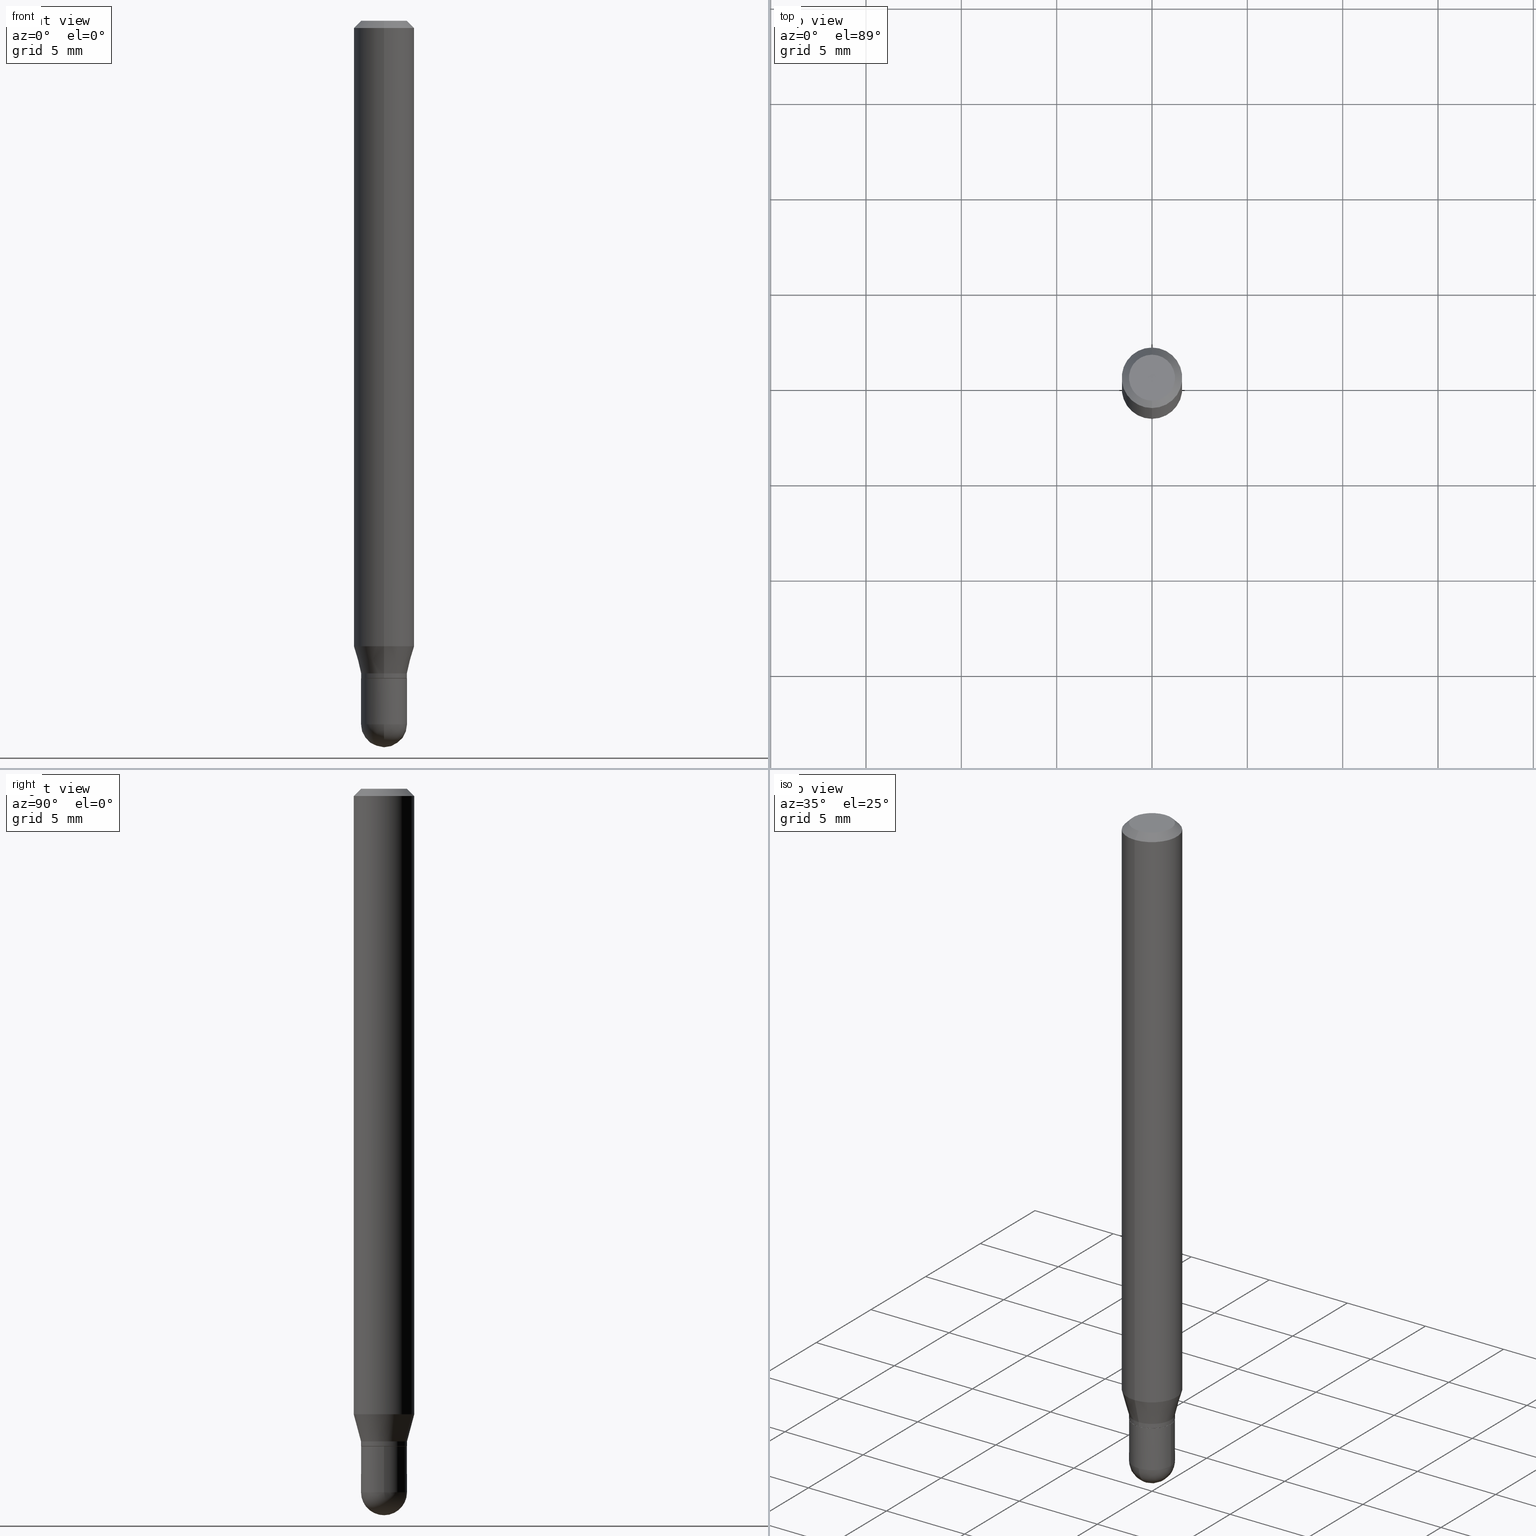
[diagram: canonical four-view strip — front | top / right | iso, engineering-drawing reading convention]
A machine part, canonical four-view strip (front | top / right | iso — engineering-drawing reading convention). The complete STEP part file that produces these views, byte-faithful:
ISO-10303-21;
HEADER;
FILE_DESCRIPTION (( 'STEP AP203' ),
    '1' );
FILE_NAME ('04382.STEP',
    '2024-03-08T19:02:20',
    ( '' ),
    ( '' ),
    'SwSTEP 2.0',
    'SolidWorks 2023',
    '' );
FILE_SCHEMA (( 'CONFIG_CONTROL_DESIGN' ));
ENDSEC;

DATA;
#1 = ORIENTED_EDGE ( 'NONE', *, *, #402, .F. ) ;
#2 = ORIENTED_EDGE ( 'NONE', *, *, #266, .F. ) ;
#3 = DATE_AND_TIME ( #45, #307 ) ;
#4 = CIRCLE ( 'NONE', #240, 0.04699999999999999317 ) ;
#5 = ORIENTED_EDGE ( 'NONE', *, *, #211, .T. ) ;
#6 = ADVANCED_FACE ( 'NONE', ( #250 ), #400, .T. ) ;
#7 = VERTEX_POINT ( 'NONE', #52 ) ;
#8 = COORDINATED_UNIVERSAL_TIME_OFFSET ( 5, 0, .BEHIND. ) ;
#9 = ORIENTED_EDGE ( 'NONE', *, *, #392, .T. ) ;
#10 = ORIENTED_EDGE ( 'NONE', *, *, #211, .F. ) ;
#11 = CARTESIAN_POINT ( 'NONE',  ( 3.318459876313655906E-29, -4.737999311709590366E-15, -1.357000000000000206 ) ) ;
#12 = CARTESIAN_POINT ( 'NONE',  ( 0.04749999999999999362, -5.071376644669668238E-15, -1.357500000000000151 ) ) ;
#13 = APPROVAL_DATE_TIME ( #254, #220 ) ;
#14 = DIRECTION ( 'NONE',  ( -2.445438376060173173E-29, 3.491524916514068512E-15, 1.000000000000000000 ) ) ;
#15 = LOCAL_TIME ( 14, 2, 20.00000000000000000, #401 ) ;
#16 = CONICAL_SURFACE ( 'NONE', #74, 0.06250000000000000000, 0.7853981633974483900 ) ;
#17 = DIRECTION ( 'NONE',  ( -2.445438376060173173E-29, 3.491524916514068118E-15, 1.000000000000000000 ) ) ;
#18 = CARTESIAN_POINT ( 'NONE',  ( 3.662110149467302102E-29, -5.245947616708644728E-15, -1.500000000000000222 ) ) ;
#19 = ADVANCED_FACE ( 'NONE', ( #44 ), #253, .T. ) ;
#20 = CARTESIAN_POINT ( 'NONE',  ( 3.295228211741083750E-29, -4.704829825002706980E-15, -1.347500000000000142 ) ) ;
#21 = EDGE_CURVE ( 'NONE', #471, #207, #196, .T. ) ;
#22 = CARTESIAN_POINT ( 'NONE',  ( 1.601717240834844103E-45, -2.286884719865626789E-31, -6.549816411302738119E-17 ) ) ;
#23 = APPROVAL_PERSON_ORGANIZATION ( #61, #503, #218 ) ;
#24 = AXIS2_PLACEMENT_3D ( 'NONE', #256, #107, #265 ) ;
#25 = DIRECTION ( 'NONE',  ( 5.024295867788190974E-15, 0.7071067811865681119, 0.7071067811865270336 ) ) ;
#26 = DIRECTION ( 'NONE',  ( 1.839019923739606626E-15, 0.2588190451025258465, 0.9659258262890669799 ) ) ;
#27 = FACE_OUTER_BOUND ( 'NONE', #249, .T. ) ;
#28 = CARTESIAN_POINT ( 'NONE',  ( -4.287811248607203282E-16, -0.06250000000000005551, -0.01499999999999984852 ) ) ;
#29 = ORIENTED_EDGE ( 'NONE', *, *, #145, .T. ) ;
#30 = AXIS2_PLACEMENT_3D ( 'NONE', #198, #386, #424 ) ;
#31 = PRODUCT_DEFINITION_SHAPE ( 'NONE', 'NONE',  #275 ) ;
#32 = CC_DESIGN_PERSON_AND_ORGANIZATION_ASSIGNMENT ( #434, #170, ( #222 ) ) ;
#33 = DIRECTION ( 'NONE',  ( -6.982962677686265922E-15, -1.000000000000000000, 4.370956789862821150E-15 ) ) ;
#34 = ADVANCED_FACE ( 'NONE', ( #390 ), #41, .T. ) ;
#35 = ORIENTED_EDGE ( 'NONE', *, *, #191, .T. ) ;
#36 = CIRCLE ( 'NONE', #460, 0.04749999999999999362 ) ;
#37 =( LENGTH_UNIT ( ) NAMED_UNIT ( * ) SI_UNIT ( $, .METRE. ) );
#38 = CC_DESIGN_APPROVAL ( #220, ( #222 ) ) ;
#39 = AXIS2_PLACEMENT_3D ( 'NONE', #134, #251, #99 ) ;
#40 = ORIENTED_EDGE ( 'NONE', *, *, #21, .T. ) ;
#41 = CYLINDRICAL_SURFACE ( 'NONE', #418, 0.04750000000000000749 ) ;
#42 = DIRECTION ( 'NONE',  ( -6.982962677686265922E-15, -1.000000000000000000, 3.491524916514068118E-15 ) ) ;
#43 = ORIENTED_EDGE ( 'NONE', *, *, #362, .F. ) ;
#44 = FACE_OUTER_BOUND ( 'NONE', #319, .T. ) ;
#45 = CALENDAR_DATE ( 2024, 8, 3 ) ;
#46 = ORIENTED_EDGE ( 'NONE', *, *, #489, .F. ) ;
#47 = EDGE_LOOP ( 'NONE', ( #438, #348, #135, #394 ) ) ;
#48 = APPROVAL_ROLE ( '' ) ;
#49 = CONICAL_SURFACE ( 'NONE', #371, 0.04750000000000019484, 0.2617993877991511842 ) ;
#50 = APPROVAL_PERSON_ORGANIZATION ( #357, #327, #48 ) ;
#51 = VERTEX_POINT ( 'NONE', #285 ) ;
#52 = CARTESIAN_POINT ( 'NONE',  ( 3.907985046680881378E-16, 0.04749999999999549027, -1.347500000000000364 ) ) ;
#53 = DIRECTION ( 'NONE',  ( -6.982962677686266711E-15, -1.000000000000000000, 5.812442539711199378E-15 ) ) ;
#54 = ORIENTED_EDGE ( 'NONE', *, *, #421, .F. ) ;
#55 = EDGE_CURVE ( 'NONE', #124, #197, #432, .T. ) ;
#56 = CARTESIAN_POINT ( 'NONE',  ( -3.316907271900650691E-16, -0.04750000000000482309, -1.356999999999999984 ) ) ;
#57 = CARTESIAN_POINT ( 'NONE',  ( 0.000000000000000000, 0.000000000000000000, 0.000000000000000000 ) ) ;
#58 = DIRECTION ( 'NONE',  ( -6.982962677686265922E-15, -1.000000000000000000, 5.751258934030004495E-15 ) ) ;
#59 = EDGE_CURVE ( 'NONE', #272, #197, #494, .T. ) ;
#60 = CARTESIAN_POINT ( 'NONE',  ( -0.04750000000000000749, 3.375077994860476415E-16, -2.336494167871080260E-30 ) ) ;
#61 = PERSON_AND_ORGANIZATION ( #448, #416 ) ;
#62 = DIRECTION ( 'NONE',  ( -6.982962677686265922E-15, -1.000000000000000000, 5.751258934030004495E-15 ) ) ;
#63 = CIRCLE ( 'NONE', #242, 0.04750000000000019484 ) ;
#64 = DIRECTION ( 'NONE',  ( -6.982962677686265922E-15, -1.000000000000000000, 3.491524916514068512E-15 ) ) ;
#65 = CIRCLE ( 'NONE', #221, 0.04750000000000000749 ) ;
#66 = CARTESIAN_POINT ( 'NONE',  ( 4.440892098500943678E-16, 0.06249999999999552441, -1.291519237886468163 ) ) ;
#67 = CYLINDRICAL_SURFACE ( 'NONE', #463, 0.06250000000000000000 ) ;
#68 = EDGE_CURVE ( 'NONE', #356, #169, #389, .T. ) ;
#69 = FACE_OUTER_BOUND ( 'NONE', #509, .T. ) ;
#70 = CYLINDRICAL_SURFACE ( 'NONE', #321, 0.04750000000000000749 ) ;
#71 = CARTESIAN_POINT ( 'NONE',  ( 0.000000000000000000, 0.000000000000000000, 0.000000000000000000 ) ) ;
#72 = LINE ( 'NONE', #379, #493 ) ;
#73 = DIRECTION ( 'NONE',  ( 1.000000000000000000, -6.982962677686265922E-15, 4.883557194083112340E-29 ) ) ;
#74 = AXIS2_PLACEMENT_3D ( 'NONE', #255, #375, #216 ) ;
#75 = CYLINDRICAL_SURFACE ( 'NONE', #415, 0.06250000000000000000 ) ;
#76 = EDGE_CURVE ( 'NONE', #315, #169, #450, .T. ) ;
#77 = DIRECTION ( 'NONE',  ( -6.982962677686265922E-15, -1.000000000000000000, 3.483106191921935554E-15 ) ) ;
#78 = ORIENTED_EDGE ( 'NONE', *, *, #266, .T. ) ;
#79 = FACE_OUTER_BOUND ( 'NONE', #208, .T. ) ;
#80 = CC_DESIGN_APPROVAL ( #503, ( #275 ) ) ;
#81 = CIRCLE ( 'NONE', #259, 0.06250000000000000000 ) ;
#82 = ORIENTED_EDGE ( 'NONE', *, *, #479, .T. ) ;
#83 = ORIENTED_EDGE ( 'NONE', *, *, #204, .F. ) ;
#84 = ADVANCED_FACE ( 'NONE', ( #268 ), #457, .F. ) ;
#85 =( NAMED_UNIT ( * ) SI_UNIT ( $, .STERADIAN. ) SOLID_ANGLE_UNIT ( ) );
#86 = MANIFOLD_SOLID_BREP ( 'Body-Move/Copy2[2]', #163 ) ;
#87 = ORIENTED_EDGE ( 'NONE', *, *, #229, .T. ) ;
#88 = ORIENTED_EDGE ( 'NONE', *, *, #68, .T. ) ;
#89 = PERSON_AND_ORGANIZATION ( #448, #416 ) ;
#90 = EDGE_LOOP ( 'NONE', ( #305, #9, #323, #131 ) ) ;
#91 = ORIENTED_EDGE ( 'NONE', *, *, #160, .F. ) ;
#92 = SHAPE_DEFINITION_REPRESENTATION ( #31, #199 ) ;
#93 = CC_DESIGN_APPROVAL ( #327, ( #500 ) ) ;
#94 = CARTESIAN_POINT ( 'NONE',  ( 3.319682595501686521E-29, -4.739745074167848632E-15, -1.357500000000000373 ) ) ;
#95 = ORIENTED_EDGE ( 'NONE', *, *, #258, .T. ) ;
#96 = CIRCLE ( 'NONE', #24, 0.04749999999999999362 ) ;
#97 = VERTEX_POINT ( 'NONE', #263 ) ;
#98 = PERSON_AND_ORGANIZATION_ROLE ( 'design_owner' ) ;
#99 = DIRECTION ( 'NONE',  ( -1.000000000000000000, 6.982962677686265922E-15, -4.876176775795935793E-29 ) ) ;
#100 = LINE ( 'NONE', #60, #105 ) ;
#101 = APPLICATION_PROTOCOL_DEFINITION ( 'international standard', 'config_control_design', 1994, #202 ) ;
#102 = CARTESIAN_POINT ( 'NONE',  ( 0.04750000000000000749, -3.316907271900977082E-16, 2.316183968503069432E-30 ) ) ;
#103 = DIRECTION ( 'NONE',  ( -6.982962677686265922E-15, -1.000000000000000000, 5.751258934030004495E-15 ) ) ;
#104 = CARTESIAN_POINT ( 'NONE',  ( 3.319682595501686521E-29, -4.739745074167848632E-15, -1.357500000000000373 ) ) ;
#105 = VECTOR ( 'NONE', #366, 39.37007874015748143 ) ;
#106 = DIRECTION ( 'NONE',  ( -2.445468806185136597E-29, 3.491481338843145583E-15, 1.000000000000000000 ) ) ;
#107 = DIRECTION ( 'NONE',  ( -2.445468806185136597E-29, 3.491481338843145583E-15, 1.000000000000000000 ) ) ;
#108 = CARTESIAN_POINT ( 'NONE',  ( 3.375077994860489234E-16, 0.04750000000000019484, -1.658474335344189249E-16 ) ) ;
#109 = DIRECTION ( 'NONE',  ( -2.445438376060173173E-29, 3.491524916514068512E-15, 1.000000000000000000 ) ) ;
#110 = AXIS2_PLACEMENT_3D ( 'NONE', #20, #445, #334 ) ;
#111 = DIRECTION ( 'NONE',  ( -2.445438376060173173E-29, 3.491524916514068118E-15, 1.000000000000000000 ) ) ;
#112 = ORIENTED_EDGE ( 'NONE', *, *, #470, .F. ) ;
#113 = AXIS2_PLACEMENT_3D ( 'NONE', #289, #17, #300 ) ;
#114 = ADVANCED_FACE ( 'NONE', ( #337 ), #70, .T. ) ;
#115 = CARTESIAN_POINT ( 'NONE',  ( 3.158330707747556707E-29, -4.509371599237863193E-15, -1.291519237886467941 ) ) ;
#116 = SPHERICAL_SURFACE ( 'NONE', #508, 0.04749999999999998668 ) ;
#117 = EDGE_CURVE ( 'NONE', #124, #130, #119, .T. ) ;
#118 = CC_DESIGN_PERSON_AND_ORGANIZATION_ASSIGNMENT ( #404, #98, ( #439 ) ) ;
#119 = CIRCLE ( 'NONE', #261, 0.04749999999999999362 ) ;
#120 = CARTESIAN_POINT ( 'NONE',  ( 0.000000000000000000, 0.000000000000000000, 0.000000000000000000 ) ) ;
#121 = ORIENTED_EDGE ( 'NONE', *, *, #117, .F. ) ;
#122 = ORIENTED_EDGE ( 'NONE', *, *, #458, .F. ) ;
#123 = CARTESIAN_POINT ( 'NONE',  ( 3.295228211741083750E-29, -4.704829825002706980E-15, -1.347500000000000142 ) ) ;
#124 = VERTEX_POINT ( 'NONE', #225 ) ;
#125 = DIRECTION ( 'NONE',  ( 1.000000000000000000, -6.982962677686266711E-15, 4.876176775795934672E-29 ) ) ;
#126 = AXIS2_PLACEMENT_3D ( 'NONE', #190, #464, #161 ) ;
#127 = CALENDAR_DATE ( 2024, 8, 3 ) ;
#128 = CIRCLE ( 'NONE', #461, 0.06250000000000000000 ) ;
#129 = VERTEX_POINT ( 'NONE', #56 ) ;
#130 = VERTEX_POINT ( 'NONE', #187 ) ;
#131 = ORIENTED_EDGE ( 'NONE', *, *, #349, .F. ) ;
#132 = EDGE_LOOP ( 'NONE', ( #480, #361 ) ) ;
#133 = SECURITY_CLASSIFICATION_LEVEL ( 'unclassified' ) ;
#134 = CARTESIAN_POINT ( 'NONE',  ( 3.316907271901307910E-16, 0.04749999999999526129, -1.357500000000000373 ) ) ;
#135 = ORIENTED_EDGE ( 'NONE', *, *, #296, .T. ) ;
#136 = ORIENTED_EDGE ( 'NONE', *, *, #355, .F. ) ;
#137 = ADVANCED_FACE ( 'NONE', ( #446 ), #67, .T. ) ;
#138 = CALENDAR_DATE ( 2024, 8, 3 ) ;
#139 = ORIENTED_EDGE ( 'NONE', *, *, #365, .T. ) ;
#140 = PLANE ( 'NONE',  #39 ) ;
#141 = CARTESIAN_POINT ( 'NONE',  ( 3.668157564090276033E-31, -5.237287374771125695E-17, -0.01500000000000006710 ) ) ;
#142 = DIRECTION ( 'NONE',  ( 0.000000000000000000, 0.000000000000000000, 1.000000000000000000 ) ) ;
#143 = DIRECTION ( 'NONE',  ( -6.982962677686265922E-15, -1.000000000000000000, 3.483106191921935554E-15 ) ) ;
#144 = FACE_OUTER_BOUND ( 'NONE', #280, .T. ) ;
#145 = EDGE_CURVE ( 'NONE', #471, #356, #100, .T. ) ;
#146 = CARTESIAN_POINT ( 'NONE',  ( 3.319723904396323737E-29, -4.739685917479570727E-15, -1.357500000000000151 ) ) ;
#147 = APPLICATION_CONTEXT ( 'configuration controlled 3d designs of mechanical parts and assemblies' ) ;
#148 = CARTESIAN_POINT ( 'NONE',  ( 0.04750000000000000749, -5.237222008264718177E-15, -1.452500000000000346 ) ) ;
#149 =( GEOMETRIC_REPRESENTATION_CONTEXT ( 3 ) GLOBAL_UNCERTAINTY_ASSIGNED_CONTEXT ( ( #205 ) ) GLOBAL_UNIT_ASSIGNED_CONTEXT ( ( #326, #214, #85 ) ) REPRESENTATION_CONTEXT ( 'NONE', 'WORKASPACE' ) );
#150 = CARTESIAN_POINT ( 'NONE',  ( 3.295228211741083750E-29, -4.704829825002706980E-15, -1.347500000000000142 ) ) ;
#151 = DIRECTION ( 'NONE',  ( -6.982962677686266711E-15, -1.000000000000000000, 5.812442539711199378E-15 ) ) ;
#152 = DIRECTION ( 'NONE',  ( -1.807323732225336450E-15, -0.2588190451025190741, 0.9659258262890687563 ) ) ;
#153 = DIRECTION ( 'NONE',  ( -6.982962677686265922E-15, -1.000000000000000000, 3.491524916514067723E-15 ) ) ;
#154 = CIRCLE ( 'NONE', #126, 0.04750000000000000749 ) ;
#155 = ORIENTED_EDGE ( 'NONE', *, *, #175, .F. ) ;
#156 = CC_DESIGN_SECURITY_CLASSIFICATION ( #500, ( #222 ) ) ;
#157 = VECTOR ( 'NONE', #217, 39.37007874015748143 ) ;
#158 = CONICAL_SURFACE ( 'NONE', #502, 0.06250000000000000000, 0.7853981633974483900 ) ;
#159 = CARTESIAN_POINT ( 'NONE',  ( 4.440892098500943678E-16, 0.06249999999999995837, -0.01500000000000028394 ) ) ;
#160 = EDGE_CURVE ( 'NONE', #169, #356, #96, .T. ) ;
#161 = DIRECTION ( 'NONE',  ( 1.000000000000000000, -6.982962677686260400E-15, 0.000000000000000000 ) ) ;
#162 = DIRECTION ( 'NONE',  ( -2.445438376060173173E-29, 3.491524916514068118E-15, 1.000000000000000000 ) ) ;
#163 = CLOSED_SHELL ( 'NONE', ( #382, #248, #238, #466, #168, #236, #137, #336, #414, #84, #417, #6 ) ) ;
#164 = DIRECTION ( 'NONE',  ( -4.937700262164674260E-15, -0.7071067811865632269, 0.7071067811865319186 ) ) ;
#165 = VERTEX_POINT ( 'NONE', #372 ) ;
#166 = DIRECTION ( 'NONE',  ( -2.445468806185136597E-29, 3.491481338843145583E-15, 1.000000000000000000 ) ) ;
#167 = MECHANICAL_CONTEXT ( 'NONE', #147, 'mechanical' ) ;
#168 = ADVANCED_FACE ( 'NONE', ( #492 ), #384, .T. ) ;
#169 = VERTEX_POINT ( 'NONE', #12 ) ;
#170 = PERSON_AND_ORGANIZATION_ROLE ( 'creator' ) ;
#171 = AXIS2_PLACEMENT_3D ( 'NONE', #150, #301, #341 ) ;
#172 = ORIENTED_EDGE ( 'NONE', *, *, #489, .T. ) ;
#173 = ORIENTED_EDGE ( 'NONE', *, *, #496, .T. ) ;
#174 = DATE_AND_TIME ( #127, #399 ) ;
#175 = EDGE_CURVE ( 'NONE', #130, #272, #504, .T. ) ;
#176 = CARTESIAN_POINT ( 'NONE',  ( 3.547981401110308940E-29, -5.077193716965619798E-15, -1.452500000000000124 ) ) ;
#177 = APPROVAL_STATUS ( 'not_yet_approved' ) ;
#178 = CARTESIAN_POINT ( 'NONE',  ( 3.318459876313655906E-29, -4.737999311709590366E-15, -1.357000000000000206 ) ) ;
#179 = DATE_AND_TIME ( #360, #430 ) ;
#180 = VECTOR ( 'NONE', #109, 39.37007874015748143 ) ;
#181 = AXIS2_PLACEMENT_3D ( 'NONE', #104, #406, #64 ) ;
#182 = FACE_OUTER_BOUND ( 'NONE', #396, .T. ) ;
#183 = ADVANCED_FACE ( 'NONE', ( #194 ), #116, .T. ) ;
#184 = FACE_OUTER_BOUND ( 'NONE', #90, .T. ) ;
#185 = DIRECTION ( 'NONE',  ( -6.982962677686265922E-15, -1.000000000000000000, 3.491524916514067723E-15 ) ) ;
#186 = CARTESIAN_POINT ( 'NONE',  ( -4.364351673553916201E-16, -0.06250000000000000000, 2.182203072821292327E-16 ) ) ;
#187 = CARTESIAN_POINT ( 'NONE',  ( -3.773273898774340269E-16, -0.04749999999999999362, 1.003492694213908288E-16 ) ) ;
#188 = PRODUCT_RELATED_PRODUCT_CATEGORY ( 'detail', '', ( #439 ) ) ;
#189 = CARTESIAN_POINT ( 'NONE',  ( -4.364351673553598192E-16, -0.06250000000000446865, -1.291519237886467719 ) ) ;
#190 = CARTESIAN_POINT ( 'NONE',  ( 3.552043440983912297E-29, -5.071376644669670605E-15, -1.452500000000000346 ) ) ;
#191 = EDGE_CURVE ( 'NONE', #165, #471, #154, .T. ) ;
#192 = FACE_OUTER_BOUND ( 'NONE', #505, .T. ) ;
#193 = CIRCLE ( 'NONE', #30, 0.04749999999999998668 ) ;
#194 = FACE_OUTER_BOUND ( 'NONE', #440, .T. ) ;
#195 = ORIENTED_EDGE ( 'NONE', *, *, #59, .F. ) ;
#196 = CIRCLE ( 'NONE', #234, 0.04750000000000000749 ) ;
#197 = VERTEX_POINT ( 'NONE', #159 ) ;
#198 = CARTESIAN_POINT ( 'NONE',  ( 3.547981401110308940E-29, -5.077193716965619798E-15, -1.452500000000000124 ) ) ;
#199 = ADVANCED_BREP_SHAPE_REPRESENTATION ( '04382', ( #425, #86, #376 ), #149 ) ;
#200 = ORIENTED_EDGE ( 'NONE', *, *, #145, .F. ) ;
#201 = CARTESIAN_POINT ( 'NONE',  ( -0.04749999999999999362, -4.568023481588573961E-15, -1.357500000000000151 ) ) ;
#202 = APPLICATION_CONTEXT ( 'configuration controlled 3d designs of mechanical parts and assemblies' ) ;
#203 = ORIENTED_EDGE ( 'NONE', *, *, #175, .T. ) ;
#204 = EDGE_CURVE ( 'NONE', #7, #292, #72, .T. ) ;
#205 = UNCERTAINTY_MEASURE_WITH_UNIT (LENGTH_MEASURE( 1.000000000000000082E-05 ), #326, 'distance_accuracy_value', 'NONE');
#206 = PLANE ( 'NONE',  #345 ) ;
#207 = VERTEX_POINT ( 'NONE', #310 ) ;
#208 = EDGE_LOOP ( 'NONE', ( #431, #173 ) ) ;
#209 = ORIENTED_EDGE ( 'NONE', *, *, #191, .F. ) ;
#210 = CALENDAR_DATE ( 2024, 8, 3 ) ;
#211 = EDGE_CURVE ( 'NONE', #388, #292, #224, .T. ) ;
#212 = ORIENTED_EDGE ( 'NONE', *, *, #470, .T. ) ;
#213 = EDGE_CURVE ( 'NONE', #97, #247, #429, .T. ) ;
#214 =( NAMED_UNIT ( * ) PLANE_ANGLE_UNIT ( ) SI_UNIT ( $, .RADIAN. ) );
#215 = ORIENTED_EDGE ( 'NONE', *, *, #55, .F. ) ;
#216 = DIRECTION ( 'NONE',  ( 6.982962677686265922E-15, 1.000000000000000000, -3.483106191921935554E-15 ) ) ;
#217 = DIRECTION ( 'NONE',  ( -2.445468806185136877E-29, 3.491481338843145188E-15, 1.000000000000000000 ) ) ;
#218 = APPROVAL_ROLE ( '' ) ;
#219 = LINE ( 'NONE', #368, #329 ) ;
#220 = APPROVAL ( #177, 'UNSPECIFIED' ) ;
#221 = AXIS2_PLACEMENT_3D ( 'NONE', #335, #106, #257 ) ;
#222 = PRODUCT_DEFINITION_FORMATION_WITH_SPECIFIED_SOURCE ( 'ANY', '', #439, .NOT_KNOWN. ) ;
#223 = DIRECTION ( 'NONE',  ( 2.445438376060173173E-29, -3.491524916514068118E-15, -1.000000000000000000 ) ) ;
#224 = CIRCLE ( 'NONE', #332, 0.06250000000000000000 ) ;
#225 = CARTESIAN_POINT ( 'NONE',  ( 3.840629472727447874E-16, 0.04749999999999999362, -2.313455976474456035E-16 ) ) ;
#226 = EDGE_LOOP ( 'NONE', ( #78, #239, #10, #290 ) ) ;
#227 = CARTESIAN_POINT ( 'NONE',  ( 3.319682595501686521E-29, -4.739745074167848632E-15, -1.357500000000000373 ) ) ;
#228 = CARTESIAN_POINT ( 'NONE',  ( 0.000000000000000000, 0.000000000000000000, 0.000000000000000000 ) ) ;
#229 = EDGE_CURVE ( 'NONE', #129, #353, #273, .T. ) ;
#230 = DIRECTION ( 'NONE',  ( -2.445438376060173173E-29, 3.491524916514068512E-15, 1.000000000000000000 ) ) ;
#231 = ORIENTED_EDGE ( 'NONE', *, *, #392, .F. ) ;
#232 = VECTOR ( 'NONE', #25, 39.37007874015748143 ) ;
#233 = DIRECTION ( 'NONE',  ( -6.982962677686265922E-15, -1.000000000000000000, 5.751258934030028949E-15 ) ) ;
#234 = AXIS2_PLACEMENT_3D ( 'NONE', #281, #166, #354 ) ;
#235 = CARTESIAN_POINT ( 'NONE',  ( 3.547981401110308940E-29, -5.077193716965619798E-15, -1.452500000000000124 ) ) ;
#236 = ADVANCED_FACE ( 'NONE', ( #340 ), #49, .T. ) ;
#237 = DIRECTION ( 'NONE',  ( -6.982962677686266711E-15, -1.000000000000000000, 3.491524916514068118E-15 ) ) ;
#238 = ADVANCED_FACE ( 'NONE', ( #144 ), #158, .T. ) ;
#239 = ORIENTED_EDGE ( 'NONE', *, *, #204, .T. ) ;
#240 = AXIS2_PLACEMENT_3D ( 'NONE', #227, #264, #373 ) ;
#241 = ORIENTED_EDGE ( 'NONE', *, *, #296, .F. ) ;
#242 = AXIS2_PLACEMENT_3D ( 'NONE', #178, #294, #58 ) ;
#243 = ORIENTED_EDGE ( 'NONE', *, *, #21, .F. ) ;
#244 = CARTESIAN_POINT ( 'NONE',  ( 4.364351673553919652E-16, 0.06249999999999995143, -0.01500000000000028394 ) ) ;
#245 = PERSON_AND_ORGANIZATION_ROLE ( 'classification_officer' ) ;
#246 = ORIENTED_EDGE ( 'NONE', *, *, #59, .T. ) ;
#247 = VERTEX_POINT ( 'NONE', #490 ) ;
#248 = ADVANCED_FACE ( 'NONE', ( #184 ), #277, .T. ) ;
#249 = EDGE_LOOP ( 'NONE', ( #5, #476, #195, #241 ) ) ;
#250 = FACE_OUTER_BOUND ( 'NONE', #426, .T. ) ;
#251 = DIRECTION ( 'NONE',  ( 2.438088387897960049E-29, -3.491481338843145188E-15, -1.000000000000000000 ) ) ;
#252 = EDGE_LOOP ( 'NONE', ( #83, #474, #82, #122 ) ) ;
#253 = SPHERICAL_SURFACE ( 'NONE', #409, 0.04749999999999998668 ) ;
#254 = DATE_AND_TIME ( #138, #15 ) ;
#255 = CARTESIAN_POINT ( 'NONE',  ( 3.668157564090276033E-31, -5.237287374771125695E-17, -0.01500000000000006710 ) ) ;
#256 = CARTESIAN_POINT ( 'NONE',  ( 3.319723904396323737E-29, -4.739685917479570727E-15, -1.357500000000000151 ) ) ;
#257 = DIRECTION ( 'NONE',  ( 1.000000000000000000, -6.982962677686260400E-15, 0.000000000000000000 ) ) ;
#258 = EDGE_CURVE ( 'NONE', #315, #165, #65, .T. ) ;
#259 = AXIS2_PLACEMENT_3D ( 'NONE', #115, #274, #33 ) ;
#260 = ORIENTED_EDGE ( 'NONE', *, *, #302, .T. ) ;
#261 = AXIS2_PLACEMENT_3D ( 'NONE', #22, #488, #455 ) ;
#262 = CARTESIAN_POINT ( 'NONE',  ( 3.668157564090276033E-31, -5.237287374771125695E-17, -0.01500000000000006710 ) ) ;
#263 = CARTESIAN_POINT ( 'NONE',  ( -3.281992458512213224E-16, -0.04700000000000473244, -1.357500000000000151 ) ) ;
#264 = DIRECTION ( 'NONE',  ( -2.445438376060173173E-29, 3.491524916514068118E-15, 1.000000000000000000 ) ) ;
#265 = DIRECTION ( 'NONE',  ( 1.000000000000000000, -6.982962677686261977E-15, 0.000000000000000000 ) ) ;
#266 = EDGE_CURVE ( 'NONE', #51, #7, #284, .T. ) ;
#267 = CARTESIAN_POINT ( 'NONE',  ( -0.04750000000000000749, -4.568023481588573961E-15, -1.452500000000000346 ) ) ;
#268 = FACE_OUTER_BOUND ( 'NONE', #132, .T. ) ;
#269 = CIRCLE ( 'NONE', #299, 0.04750000000000000749 ) ;
#270 = DIRECTION ( 'NONE',  ( -2.445468806185136597E-29, 3.491481338843145583E-15, 1.000000000000000000 ) ) ;
#271 = DIRECTION ( 'NONE',  ( -6.982962677686265922E-15, -1.000000000000000000, 4.370956789862821150E-15 ) ) ;
#272 = VERTEX_POINT ( 'NONE', #451 ) ;
#273 = CIRCLE ( 'NONE', #369, 0.04750000000000019484 ) ;
#274 = DIRECTION ( 'NONE',  ( -2.445438376060173173E-29, 3.491524916514068118E-15, 1.000000000000000000 ) ) ;
#275 = PRODUCT_DEFINITION ( 'UNKNOWN', '', #222, #317 ) ;
#276 = ORIENTED_EDGE ( 'NONE', *, *, #76, .F. ) ;
#277 = CONICAL_SURFACE ( 'NONE', #286, 0.04699999999999999317, 0.7853981633974739252 ) ;
#278 = DIRECTION ( 'NONE',  ( -2.445438376060173173E-29, 3.491524916514068118E-15, 1.000000000000000000 ) ) ;
#279 = ADVANCED_FACE ( 'NONE', ( #182 ), #140, .F. ) ;
#280 = EDGE_LOOP ( 'NONE', ( #478, #203, #246, #215 ) ) ;
#281 = CARTESIAN_POINT ( 'NONE',  ( 3.552043440983912297E-29, -5.071376644669670605E-15, -1.452500000000000346 ) ) ;
#282 = CYLINDRICAL_SURFACE ( 'NONE', #407, 0.04750000000000019484 ) ;
#283 = ORIENTED_EDGE ( 'NONE', *, *, #68, .F. ) ;
#284 = CIRCLE ( 'NONE', #110, 0.04750000000000019484 ) ;
#285 = CARTESIAN_POINT ( 'NONE',  ( -3.316907271900660552E-16, -0.04750000000000489941, -1.347499999999999698 ) ) ;
#286 = AXIS2_PLACEMENT_3D ( 'NONE', #94, #410, #53 ) ;
#287 = VERTEX_POINT ( 'NONE', #18 ) ;
#288 = COORDINATED_UNIVERSAL_TIME_OFFSET ( 5, 0, .BEHIND. ) ;
#289 = CARTESIAN_POINT ( 'NONE',  ( 3.319682595501686521E-29, -4.739745074167848632E-15, -1.357500000000000373 ) ) ;
#290 = ORIENTED_EDGE ( 'NONE', *, *, #479, .F. ) ;
#291 = PERSON_AND_ORGANIZATION ( #448, #416 ) ;
#292 = VERTEX_POINT ( 'NONE', #66 ) ;
#293 = LENGTH_MEASURE_WITH_UNIT ( LENGTH_MEASURE( 0.02539999999999999897 ), #37 );
#294 = DIRECTION ( 'NONE',  ( -2.445438376060173173E-29, 3.491524916514068118E-15, 1.000000000000000000 ) ) ;
#295 = DIRECTION ( 'NONE',  ( 1.000000000000000000, -6.982962677686266711E-15, 4.876176775795934672E-29 ) ) ;
#296 = EDGE_CURVE ( 'NONE', #388, #272, #297, .T. ) ;
#297 = LINE ( 'NONE', #186, #391 ) ;
#298 = DIRECTION ( 'NONE',  ( -2.445468806185136597E-29, 3.491481338843145583E-15, 1.000000000000000000 ) ) ;
#299 = AXIS2_PLACEMENT_3D ( 'NONE', #459, #270, #419 ) ;
#300 = DIRECTION ( 'NONE',  ( -6.982962677686266711E-15, -1.000000000000000000, 5.812442539711199378E-15 ) ) ;
#301 = DIRECTION ( 'NONE',  ( -2.445438376060173173E-29, 3.491524916514068118E-15, 1.000000000000000000 ) ) ;
#302 = EDGE_CURVE ( 'NONE', #247, #97, #4, .T. ) ;
#303 = CARTESIAN_POINT ( 'NONE',  ( 3.316907271900976096E-16, 0.04749999999999999362, -1.985965155909319314E-16 ) ) ;
#304 = CARTESIAN_POINT ( 'NONE',  ( -3.316907271900989901E-16, -0.04750000000000019484, 1.658474335344189249E-16 ) ) ;
#305 = ORIENTED_EDGE ( 'NONE', *, *, #213, .T. ) ;
#306 = LINE ( 'NONE', #312, #232 ) ;
#307 = LOCAL_TIME ( 14, 2, 20.00000000000000000, #318 ) ;
#308 = ORIENTED_EDGE ( 'NONE', *, *, #421, .T. ) ;
#309 = CIRCLE ( 'NONE', #320, 0.04750000000000019484 ) ;
#310 = CARTESIAN_POINT ( 'NONE',  ( -3.316907271900621108E-16, -0.04750000000000507983, -1.452500000000000124 ) ) ;
#311 = EDGE_CURVE ( 'NONE', #292, #197, #403, .T. ) ;
#312 = CARTESIAN_POINT ( 'NONE',  ( 3.339550858072801710E-16, 0.04699999999999526085, -1.357500000000000817 ) ) ;
#313 = DIRECTION ( 'NONE',  ( 1.000000000000000000, -6.982962677686265922E-15, 4.883557194083112340E-29 ) ) ;
#314 = CARTESIAN_POINT ( 'NONE',  ( 3.375077994860828938E-16, 0.04749999999999556660, -1.357000000000000650 ) ) ;
#315 = VERTEX_POINT ( 'NONE', #148 ) ;
#316 = DIRECTION ( 'NONE',  ( -2.445468806185136597E-29, 3.491481338843145583E-15, 1.000000000000000000 ) ) ;
#317 = DESIGN_CONTEXT ( 'detailed design', #202, 'design' ) ;
#318 = COORDINATED_UNIVERSAL_TIME_OFFSET ( 5, 0, .BEHIND. ) ;
#319 = EDGE_LOOP ( 'NONE', ( #43, #435, #243, #209 ) ) ;
#320 = AXIS2_PLACEMENT_3D ( 'NONE', #123, #428, #378 ) ;
#321 = AXIS2_PLACEMENT_3D ( 'NONE', #328, #411, #295 ) ;
#322 = APPROVAL_STATUS ( 'not_yet_approved' ) ;
#323 = ORIENTED_EDGE ( 'NONE', *, *, #229, .F. ) ;
#324 = APPROVAL_DATE_TIME ( #174, #327 ) ;
#325 = DIRECTION ( 'NONE',  ( -6.982962677686265922E-15, -1.000000000000000000, 3.491524916514068118E-15 ) ) ;
#326 =( CONVERSION_BASED_UNIT ( 'INCH', #293 ) LENGTH_UNIT ( ) NAMED_UNIT ( #501 ) );
#327 = APPROVAL ( #322, 'UNSPECIFIED' ) ;
#328 = CARTESIAN_POINT ( 'NONE',  ( 0.000000000000000000, 0.000000000000000000, 0.000000000000000000 ) ) ;
#329 = VECTOR ( 'NONE', #164, 39.37007874015748143 ) ;
#330 = DATE_TIME_ROLE ( 'classification_date' ) ;
#331 = AXIS2_PLACEMENT_3D ( 'NONE', #141, #412, #143 ) ;
#332 = AXIS2_PLACEMENT_3D ( 'NONE', #462, #111, #271 ) ;
#333 = ORIENTED_EDGE ( 'NONE', *, *, #349, .T. ) ;
#334 = DIRECTION ( 'NONE',  ( -6.982962677686265922E-15, -1.000000000000000000, 5.751258934030004495E-15 ) ) ;
#335 = CARTESIAN_POINT ( 'NONE',  ( 3.552043440983912297E-29, -5.071376644669670605E-15, -1.452500000000000346 ) ) ;
#336 = ADVANCED_FACE ( 'NONE', ( #69 ), #16, .T. ) ;
#337 = FACE_OUTER_BOUND ( 'NONE', #363, .T. ) ;
#338 = LOCAL_TIME ( 14, 2, 20.00000000000000000, #367 ) ;
#339 = AXIS2_PLACEMENT_3D ( 'NONE', #146, #298, #452 ) ;
#340 = FACE_OUTER_BOUND ( 'NONE', #252, .T. ) ;
#341 = DIRECTION ( 'NONE',  ( -6.982962677686265922E-15, -1.000000000000000000, 5.751258934030004495E-15 ) ) ;
#342 = LINE ( 'NONE', #497, #487 ) ;
#343 = CARTESIAN_POINT ( 'NONE',  ( 1.601717240834844103E-45, -2.286884719865626789E-31, -6.549816411302738119E-17 ) ) ;
#344 = CIRCLE ( 'NONE', #422, 0.04749999999999998668 ) ;
#345 = AXIS2_PLACEMENT_3D ( 'NONE', #303, #465, #413 ) ;
#346 = EDGE_CURVE ( 'NONE', #353, #129, #63, .T. ) ;
#347 = CARTESIAN_POINT ( 'NONE',  ( 3.547981401110308940E-29, -5.077193716965619798E-15, -1.452500000000000124 ) ) ;
#348 = ORIENTED_EDGE ( 'NONE', *, *, #458, .T. ) ;
#349 = EDGE_CURVE ( 'NONE', #97, #129, #219, .T. ) ;
#350 = LINE ( 'NONE', #108, #180 ) ;
#351 = CARTESIAN_POINT ( 'NONE',  ( 0.000000000000000000, 0.000000000000000000, 0.000000000000000000 ) ) ;
#352 = CARTESIAN_POINT ( 'NONE',  ( 3.319682595501686521E-29, -4.739745074167848632E-15, -1.357500000000000373 ) ) ;
#353 = VERTEX_POINT ( 'NONE', #314 ) ;
#354 = DIRECTION ( 'NONE',  ( 1.000000000000000000, -6.982962677686260400E-15, 0.000000000000000000 ) ) ;
#355 = EDGE_CURVE ( 'NONE', #287, #207, #344, .T. ) ;
#356 = VERTEX_POINT ( 'NONE', #201 ) ;
#357 = PERSON_AND_ORGANIZATION ( #448, #416 ) ;
#358 = ORIENTED_EDGE ( 'NONE', *, *, #160, .T. ) ;
#359 = AXIS2_PLACEMENT_3D ( 'NONE', #351, #510, #325 ) ;
#360 = CALENDAR_DATE ( 2024, 8, 3 ) ;
#361 = ORIENTED_EDGE ( 'NONE', *, *, #302, .F. ) ;
#362 = EDGE_CURVE ( 'NONE', #287, #165, #193, .T. ) ;
#363 = EDGE_LOOP ( 'NONE', ( #200, #40, #172, #484, #283 ) ) ;
#364 = PERSON_AND_ORGANIZATION_ROLE ( 'creator' ) ;
#365 = EDGE_CURVE ( 'NONE', #197, #272, #128, .T. ) ;
#366 = DIRECTION ( 'NONE',  ( -2.445468806185136877E-29, 3.491481338843145188E-15, 1.000000000000000000 ) ) ;
#367 = COORDINATED_UNIVERSAL_TIME_OFFSET ( 5, 0, .BEHIND. ) ;
#368 = CARTESIAN_POINT ( 'NONE',  ( -3.281992458512213224E-16, -0.04700000000000473244, -1.357500000000000151 ) ) ;
#369 = AXIS2_PLACEMENT_3D ( 'NONE', #11, #449, #103 ) ;
#370 = APPROVAL_PERSON_ORGANIZATION ( #512, #220, #437 ) ;
#371 = AXIS2_PLACEMENT_3D ( 'NONE', #405, #442, #62 ) ;
#372 = CARTESIAN_POINT ( 'NONE',  ( 3.375077994860830417E-16, 0.04749999999999491435, -1.452500000000000790 ) ) ;
#373 = DIRECTION ( 'NONE',  ( -6.982962677686266711E-15, -1.000000000000000000, 5.812442539711199378E-15 ) ) ;
#374 = DIRECTION ( 'NONE',  ( -2.445438376060173173E-29, 3.491524916514068118E-15, 1.000000000000000000 ) ) ;
#375 = DIRECTION ( 'NONE',  ( 2.445438376060173173E-29, -3.491524916514068118E-15, -1.000000000000000000 ) ) ;
#376 = AXIS2_PLACEMENT_3D ( 'NONE', #57, #142, #441 ) ;
#377 = VECTOR ( 'NONE', #385, 39.37007874015748143 ) ;
#378 = DIRECTION ( 'NONE',  ( -6.982962677686265922E-15, -1.000000000000000000, 5.751258934030004495E-15 ) ) ;
#379 = CARTESIAN_POINT ( 'NONE',  ( 3.375077994860818584E-16, 0.04749999999999549027, -1.347500000000000364 ) ) ;
#380 = CC_DESIGN_DATE_AND_TIME_ASSIGNMENT ( #477, #444, ( #275 ) ) ;
#381 = DIRECTION ( 'NONE',  ( -2.445438376060173173E-29, 3.491524916514068118E-15, 1.000000000000000000 ) ) ;
#382 = ADVANCED_FACE ( 'NONE', ( #192 ), #282, .T. ) ;
#383 = CONICAL_SURFACE ( 'NONE', #473, 0.04699999999999999317, 0.7853981633974739252 ) ;
#384 = CONICAL_SURFACE ( 'NONE', #171, 0.04750000000000019484, 0.2617993877991511842 ) ;
#385 = DIRECTION ( 'NONE',  ( -4.851104656540964275E-15, -0.7071067811865500152, -0.7071067811865450192 ) ) ;
#386 = DIRECTION ( 'NONE',  ( 1.000000000000000000, -7.105427357601001070E-15, 4.926315508542082329E-29 ) ) ;
#387 = CARTESIAN_POINT ( 'NONE',  ( 3.668157564090276033E-31, -5.237287374771125695E-17, -0.01500000000000006710 ) ) ;
#388 = VERTEX_POINT ( 'NONE', #189 ) ;
#389 = CIRCLE ( 'NONE', #339, 0.04749999999999999362 ) ;
#390 = FACE_OUTER_BOUND ( 'NONE', #436, .T. ) ;
#391 = VECTOR ( 'NONE', #14, 39.37007874015748143 ) ;
#392 = EDGE_CURVE ( 'NONE', #247, #353, #306, .T. ) ;
#393 = DIRECTION ( 'NONE',  ( -6.982962677686265133E-15, -1.000000000000000000, 0.000000000000000000 ) ) ;
#394 = ORIENTED_EDGE ( 'NONE', *, *, #365, .F. ) ;
#395 = DIRECTION ( 'NONE',  ( 4.937700262164548042E-15, 0.7071067811865451302, -0.7071067811865499042 ) ) ;
#396 = EDGE_LOOP ( 'NONE', ( #358, #88 ) ) ;
#397 = APPROVAL_STATUS ( 'not_yet_approved' ) ;
#398 = ORIENTED_EDGE ( 'NONE', *, *, #346, .T. ) ;
#399 = LOCAL_TIME ( 14, 2, 20.00000000000000000, #8 ) ;
#400 = CYLINDRICAL_SURFACE ( 'NONE', #359, 0.04750000000000019484 ) ;
#401 = COORDINATED_UNIVERSAL_TIME_OFFSET ( 5, 0, .BEHIND. ) ;
#402 = EDGE_CURVE ( 'NONE', #7, #51, #309, .T. ) ;
#403 = LINE ( 'NONE', #491, #433 ) ;
#404 = PERSON_AND_ORGANIZATION ( #448, #416 ) ;
#405 = CARTESIAN_POINT ( 'NONE',  ( 3.295228211741083750E-29, -4.704829825002706980E-15, -1.347500000000000142 ) ) ;
#406 = DIRECTION ( 'NONE',  ( -2.445438376060172613E-29, 3.491524916514068512E-15, 1.000000000000000000 ) ) ;
#407 = AXIS2_PLACEMENT_3D ( 'NONE', #71, #381, #42 ) ;
#408 = CC_DESIGN_PERSON_AND_ORGANIZATION_ASSIGNMENT ( #291, #245, ( #500 ) ) ;
#409 = AXIS2_PLACEMENT_3D ( 'NONE', #176, #313, #468 ) ;
#410 = DIRECTION ( 'NONE',  ( -2.445438376060173173E-29, 3.491524916514068118E-15, 1.000000000000000000 ) ) ;
#411 = DIRECTION ( 'NONE',  ( -2.445468806185136597E-29, 3.491481338843145583E-15, 1.000000000000000000 ) ) ;
#412 = DIRECTION ( 'NONE',  ( -2.445438376060173173E-29, 3.491524916514068118E-15, 1.000000000000000000 ) ) ;
#413 = DIRECTION ( 'NONE',  ( 6.982962677686265922E-15, 1.000000000000000000, -3.491524916514068512E-15 ) ) ;
#414 = ADVANCED_FACE ( 'NONE', ( #79 ), #206, .F. ) ;
#415 = AXIS2_PLACEMENT_3D ( 'NONE', #120, #456, #153 ) ;
#416 = ORGANIZATION ( 'UNSPECIFIED', 'UNSPECIFIED', '' ) ;
#417 = ADVANCED_FACE ( 'NONE', ( #495 ), #383, .T. ) ;
#418 = AXIS2_PLACEMENT_3D ( 'NONE', #511, #316, #125 ) ;
#419 = DIRECTION ( 'NONE',  ( 1.000000000000000000, -6.982962677686260400E-15, 0.000000000000000000 ) ) ;
#420 = ORIENTED_EDGE ( 'NONE', *, *, #362, .T. ) ;
#421 = EDGE_CURVE ( 'NONE', #129, #51, #423, .T. ) ;
#422 = AXIS2_PLACEMENT_3D ( 'NONE', #235, #507, #393 ) ;
#423 = LINE ( 'NONE', #304, #499 ) ;
#424 = DIRECTION ( 'NONE',  ( 7.105427357601001070E-15, 1.000000000000000000, 0.000000000000000000 ) ) ;
#425 = MANIFOLD_SOLID_BREP ( 'Body-Move/Copy2[1]', #453 ) ;
#426 = EDGE_LOOP ( 'NONE', ( #112, #398, #308, #1 ) ) ;
#427 = CC_DESIGN_PERSON_AND_ORGANIZATION_ASSIGNMENT ( #482, #364, ( #275 ) ) ;
#428 = DIRECTION ( 'NONE',  ( -2.445438376060173173E-29, 3.491524916514068118E-15, 1.000000000000000000 ) ) ;
#429 = CIRCLE ( 'NONE', #113, 0.04699999999999999317 ) ;
#430 = LOCAL_TIME ( 14, 2, 20.00000000000000000, #288 ) ;
#431 = ORIENTED_EDGE ( 'NONE', *, *, #117, .T. ) ;
#432 = LINE ( 'NONE', #244, #475 ) ;
#433 = VECTOR ( 'NONE', #486, 39.37007874015748143 ) ;
#434 = PERSON_AND_ORGANIZATION ( #448, #416 ) ;
#435 = ORIENTED_EDGE ( 'NONE', *, *, #355, .T. ) ;
#436 = EDGE_LOOP ( 'NONE', ( #35, #29, #91, #276, #95 ) ) ;
#437 = APPROVAL_ROLE ( '' ) ;
#438 = ORIENTED_EDGE ( 'NONE', *, *, #311, .F. ) ;
#439 = PRODUCT ( '04382', '04382', '', ( #167 ) ) ;
#440 = EDGE_LOOP ( 'NONE', ( #136, #420, #467, #46 ) ) ;
#441 = DIRECTION ( 'NONE',  ( 1.000000000000000000, 0.000000000000000000, 0.000000000000000000 ) ) ;
#442 = DIRECTION ( 'NONE',  ( -2.445438376060173173E-29, 3.491524916514068118E-15, 1.000000000000000000 ) ) ;
#443 = ORIENTED_EDGE ( 'NONE', *, *, #346, .F. ) ;
#444 = DATE_TIME_ROLE ( 'creation_date' ) ;
#445 = DIRECTION ( 'NONE',  ( -2.445438376060173173E-29, 3.491524916514068118E-15, 1.000000000000000000 ) ) ;
#446 = FACE_OUTER_BOUND ( 'NONE', #47, .T. ) ;
#447 = APPLICATION_PROTOCOL_DEFINITION ( 'international standard', 'config_control_design', 1994, #147 ) ;
#448 = PERSON ( 'UNSPECIFIED', 'UNSPECIFIED', 'UNSPECIFIED', ('UNSPECIFIED'), ('UNSPECIFIED'), ('UNSPECIFIED') ) ;
#449 = DIRECTION ( 'NONE',  ( -2.445438376060173173E-29, 3.491524916514068118E-15, 1.000000000000000000 ) ) ;
#450 = LINE ( 'NONE', #102, #157 ) ;
#451 = CARTESIAN_POINT ( 'NONE',  ( -4.364351673553912750E-16, -0.06250000000000005551, -0.01499999999999984852 ) ) ;
#452 = DIRECTION ( 'NONE',  ( 1.000000000000000000, -6.982962677686261977E-15, 0.000000000000000000 ) ) ;
#453 = CLOSED_SHELL ( 'NONE', ( #34, #183, #279, #19, #114 ) ) ;
#454 = DIRECTION ( 'NONE',  ( 6.982962677686265922E-15, 1.000000000000000000, -3.483106191921935554E-15 ) ) ;
#455 = DIRECTION ( 'NONE',  ( -6.982962677686266711E-15, -1.000000000000000000, 3.491524916514068118E-15 ) ) ;
#456 = DIRECTION ( 'NONE',  ( -2.445438376060173173E-29, 3.491524916514068118E-15, 1.000000000000000000 ) ) ;
#457 = PLANE ( 'NONE',  #181 ) ;
#458 = EDGE_CURVE ( 'NONE', #292, #388, #81, .T. ) ;
#459 = CARTESIAN_POINT ( 'NONE',  ( 3.552043440983912297E-29, -5.071376644669670605E-15, -1.452500000000000346 ) ) ;
#460 = AXIS2_PLACEMENT_3D ( 'NONE', #343, #278, #237 ) ;
#461 = AXIS2_PLACEMENT_3D ( 'NONE', #387, #162, #77 ) ;
#462 = CARTESIAN_POINT ( 'NONE',  ( 3.158330707747556707E-29, -4.509371599237863193E-15, -1.291519237886467941 ) ) ;
#463 = AXIS2_PLACEMENT_3D ( 'NONE', #228, #374, #185 ) ;
#464 = DIRECTION ( 'NONE',  ( -2.445468806185136597E-29, 3.491481338843145583E-15, 1.000000000000000000 ) ) ;
#465 = DIRECTION ( 'NONE',  ( 2.445438376060172613E-29, -3.491524916514068512E-15, -1.000000000000000000 ) ) ;
#466 = ADVANCED_FACE ( 'NONE', ( #27 ), #75, .T. ) ;
#467 = ORIENTED_EDGE ( 'NONE', *, *, #258, .F. ) ;
#468 = DIRECTION ( 'NONE',  ( -6.982962677686265922E-15, -1.000000000000000000, 5.751258934030028949E-15 ) ) ;
#469 = DIRECTION ( 'NONE',  ( -2.445438376060173173E-29, 3.491524916514068118E-15, 1.000000000000000000 ) ) ;
#470 = EDGE_CURVE ( 'NONE', #353, #7, #350, .T. ) ;
#471 = VERTEX_POINT ( 'NONE', #267 ) ;
#472 = PERSON_AND_ORGANIZATION_ROLE ( 'design_supplier' ) ;
#473 = AXIS2_PLACEMENT_3D ( 'NONE', #352, #469, #151 ) ;
#474 = ORIENTED_EDGE ( 'NONE', *, *, #402, .T. ) ;
#475 = VECTOR ( 'NONE', #395, 39.37007874015748143 ) ;
#476 = ORIENTED_EDGE ( 'NONE', *, *, #311, .T. ) ;
#477 = DATE_AND_TIME ( #210, #338 ) ;
#478 = ORIENTED_EDGE ( 'NONE', *, *, #496, .F. ) ;
#479 = EDGE_CURVE ( 'NONE', #51, #388, #342, .T. ) ;
#480 = ORIENTED_EDGE ( 'NONE', *, *, #213, .F. ) ;
#481 = CC_DESIGN_DATE_AND_TIME_ASSIGNMENT ( #179, #330, ( #500 ) ) ;
#482 = PERSON_AND_ORGANIZATION ( #448, #416 ) ;
#483 = EDGE_LOOP ( 'NONE', ( #231, #260, #333, #443 ) ) ;
#484 = ORIENTED_EDGE ( 'NONE', *, *, #76, .T. ) ;
#485 = APPROVAL_DATE_TIME ( #3, #503 ) ;
#486 = DIRECTION ( 'NONE',  ( -2.445438376060173173E-29, 3.491524916514068512E-15, 1.000000000000000000 ) ) ;
#487 = VECTOR ( 'NONE', #152, 39.37007874015748143 ) ;
#488 = DIRECTION ( 'NONE',  ( -2.445438376060173173E-29, 3.491524916514068118E-15, 1.000000000000000000 ) ) ;
#489 = EDGE_CURVE ( 'NONE', #207, #315, #269, .T. ) ;
#490 = CARTESIAN_POINT ( 'NONE',  ( 3.357314426466811133E-16, 0.04699999999999526085, -1.357500000000000817 ) ) ;
#491 = CARTESIAN_POINT ( 'NONE',  ( 4.440892098500625669E-16, 0.06250000000000000000, -2.182203072821292327E-16 ) ) ;
#492 = FACE_OUTER_BOUND ( 'NONE', #226, .T. ) ;
#493 = VECTOR ( 'NONE', #26, 39.37007874015748143 ) ;
#494 = CIRCLE ( 'NONE', #331, 0.06250000000000000000 ) ;
#495 = FACE_OUTER_BOUND ( 'NONE', #483, .T. ) ;
#496 = EDGE_CURVE ( 'NONE', #130, #124, #36, .T. ) ;
#497 = CARTESIAN_POINT ( 'NONE',  ( -3.316907271900660552E-16, -0.04750000000000489941, -1.347499999999999698 ) ) ;
#498 = ORIENTED_EDGE ( 'NONE', *, *, #55, .T. ) ;
#499 = VECTOR ( 'NONE', #230, 39.37007874015748143 ) ;
#500 = SECURITY_CLASSIFICATION ( '', '', #133 ) ;
#501 = DIMENSIONAL_EXPONENTS ( 1.000000000000000000, 0.000000000000000000, 0.000000000000000000, 0.000000000000000000, 0.000000000000000000, 0.000000000000000000, 0.000000000000000000 ) ;
#502 = AXIS2_PLACEMENT_3D ( 'NONE', #262, #223, #454 ) ;
#503 = APPROVAL ( #397, 'UNSPECIFIED' ) ;
#504 = LINE ( 'NONE', #28, #377 ) ;
#505 = EDGE_LOOP ( 'NONE', ( #87, #212, #2, #54 ) ) ;
#506 = CC_DESIGN_PERSON_AND_ORGANIZATION_ASSIGNMENT ( #89, #472, ( #222 ) ) ;
#507 = DIRECTION ( 'NONE',  ( -1.000000000000000000, 6.982962677686265922E-15, -4.883557194083112340E-29 ) ) ;
#508 = AXIS2_PLACEMENT_3D ( 'NONE', #347, #73, #233 ) ;
#509 = EDGE_LOOP ( 'NONE', ( #155, #121, #498, #139 ) ) ;
#510 = DIRECTION ( 'NONE',  ( -2.445438376060173173E-29, 3.491524916514068118E-15, 1.000000000000000000 ) ) ;
#511 = CARTESIAN_POINT ( 'NONE',  ( 0.000000000000000000, 0.000000000000000000, 0.000000000000000000 ) ) ;
#512 = PERSON_AND_ORGANIZATION ( #448, #416 ) ;
ENDSEC;
END-ISO-10303-21;
